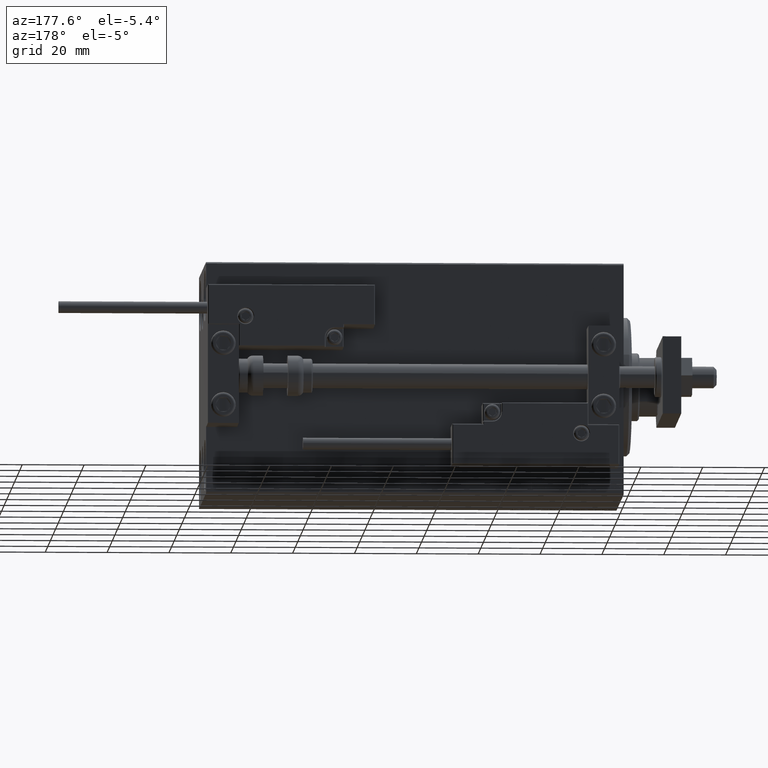
[diagram: clean part render]
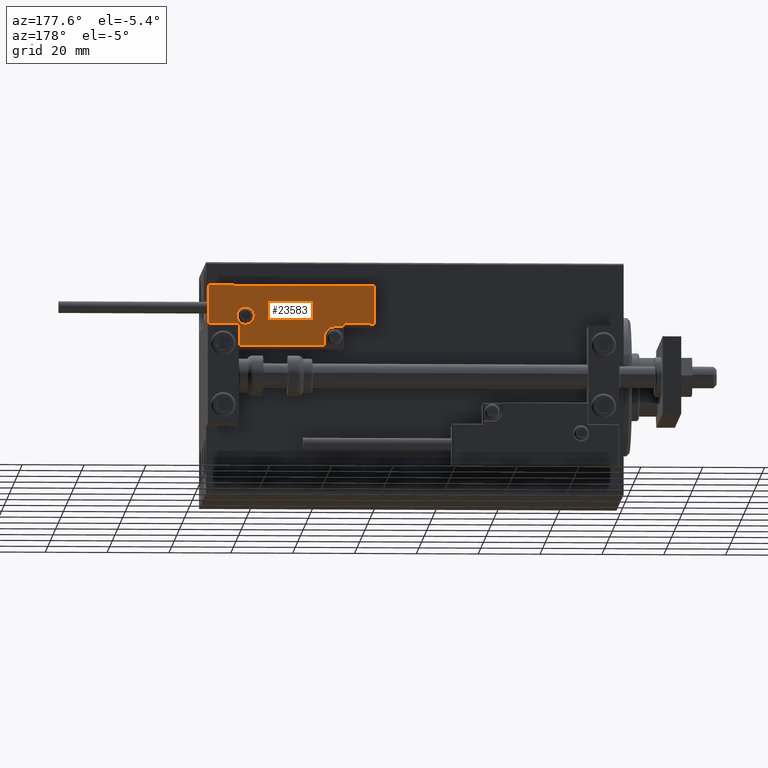
[diagram: same view with one face highlighted and labeled with its STEP entity id]
A machine part, auxiliary view. The second image highlights one B-rep face of the part: STEP entity #23583.
In plain terms, the highlighted planar face has unit normal (0, 1, -0).
Its self-contained STEP definition (entity closure, byte-faithful):
#622 = CARTESIAN_POINT ( 'NONE',  ( -16.99999999999999289, 7.300000000000003375, 14.00000000000000000 ) ) ;
#782 = VERTEX_POINT ( 'NONE', #30269 ) ;
#1481 = DIRECTION ( 'NONE',  ( -0.000000000000000000, 1.000000000000000000, -0.000000000000000000 ) ) ;
#2893 = PLANE ( 'NONE',  #28526 ) ;
#3618 = LINE ( 'NONE', #15483, #45931 ) ;
#4326 = ORIENTED_EDGE ( 'NONE', *, *, #16944, .T. ) ;
#4524 = LINE ( 'NONE', #35580, #6453 ) ;
#4982 = VERTEX_POINT ( 'NONE', #14223 ) ;
#5015 = LINE ( 'NONE', #29000, #49116 ) ;
#5566 = DIRECTION ( 'NONE',  ( 0.000000000000000000, -0.000000000000000000, -1.000000000000000000 ) ) ;
#5901 = DIRECTION ( 'NONE',  ( 0.000000000000000000, 1.000000000000000000, -0.000000000000000000 ) ) ;
#6419 = EDGE_CURVE ( 'NONE', #25670, #17656, #34373, .T. ) ;
#6453 = VECTOR ( 'NONE', #1481, 1000.000000000000000 ) ;
#6784 = CARTESIAN_POINT ( 'NONE',  ( 16.69999999999999929, 7.000000000000009770, 14.00000000000000000 ) ) ;
#6886 = ORIENTED_EDGE ( 'NONE', *, *, #14496, .T. ) ;
#9031 = CARTESIAN_POINT ( 'NONE',  ( 16.69999999999999929, 7.300000000000009592, 14.00000000000000000 ) ) ;
#11157 = ORIENTED_EDGE ( 'NONE', *, *, #29554, .T. ) ;
#11593 = CARTESIAN_POINT ( 'NONE',  ( -16.69999999999999218, 7.300000000000003375, 14.00000000000000000 ) ) ;
#11676 = DIRECTION ( 'NONE',  ( -1.000000000000000000, 6.424901762877063495E-17, -0.000000000000000000 ) ) ;
#11774 = VERTEX_POINT ( 'NONE', #26428 ) ;
#11996 = CIRCLE ( 'NONE', #44255, 2.800000000000000266 ) ;
#12188 = CARTESIAN_POINT ( 'NONE',  ( -14.79999999999994920, 9.800000000000004263, 14.00000000000000000 ) ) ;
#12478 = DIRECTION ( 'NONE',  ( 1.000000000000000000, -1.734723475976815230E-16, 0.000000000000000000 ) ) ;
#13154 = CARTESIAN_POINT ( 'NONE',  ( 10.69999999999999929, 0.3000000000000032085, 14.00000000000000000 ) ) ;
#13680 = DIRECTION ( 'NONE',  ( -8.006416042969869188E-16, -1.000000000000000000, 0.000000000000000000 ) ) ;
#14058 = VERTEX_POINT ( 'NONE', #13154 ) ;
#14223 = CARTESIAN_POINT ( 'NONE',  ( 26.70000000000006324, 7.300000000000007816, 14.00000000000000000 ) ) ;
#14246 = CARTESIAN_POINT ( 'NONE',  ( 0.000000000000000000, 0.000000000000000000, 14.00000000000000000 ) ) ;
#14496 = EDGE_CURVE ( 'NONE', #11774, #18731, #16531, .T. ) ;
#15338 = CARTESIAN_POINT ( 'NONE',  ( 11.00000000000000000, 0.3000000000000032085, 14.00000000000000000 ) ) ;
#15483 = CARTESIAN_POINT ( 'NONE',  ( -26.99999999999993605, 19.70000000000002061, 14.00000000000000000 ) ) ;
#15731 = EDGE_CURVE ( 'NONE', #17656, #25670, #11996, .T. ) ;
#15850 = ORIENTED_EDGE ( 'NONE', *, *, #31919, .T. ) ;
#16357 = EDGE_CURVE ( 'NONE', #48628, #30132, #18995, .T. ) ;
#16531 = LINE ( 'NONE', #622, #29883 ) ;
#16944 = EDGE_CURVE ( 'NONE', #18731, #782, #5015, .T. ) ;
#17026 = VECTOR ( 'NONE', #19487, 1000.000000000000000 ) ;
#17531 = LINE ( 'NONE', #36474, #48684 ) ;
#17546 = FACE_OUTER_BOUND ( 'NONE', #21228, .T. ) ;
#17656 = VERTEX_POINT ( 'NONE', #24229 ) ;
#18055 = ORIENTED_EDGE ( 'NONE', *, *, #42105, .T. ) ;
#18301 = DIRECTION ( 'NONE',  ( -0.000000000000000000, 0.000000000000000000, 1.000000000000000000 ) ) ;
#18731 = VERTEX_POINT ( 'NONE', #11593 ) ;
#18870 = EDGE_CURVE ( 'NONE', #14058, #37711, #4524, .T. ) ;
#18995 = LINE ( 'NONE', #25833, #47490 ) ;
#19487 = DIRECTION ( 'NONE',  ( 1.000000000000000000, -1.734723475976796001E-16, 0.000000000000000000 ) ) ;
#21114 = ORIENTED_EDGE ( 'NONE', *, *, #6419, .T. ) ;
#21228 = EDGE_LOOP ( 'NONE', ( #4326, #49288, #37989, #38463, #39401, #18055, #15850, #28333, #11157, #39473, #6886 ) ) ;
#21247 = CARTESIAN_POINT ( 'NONE',  ( 13.99999999999999822, 3.000000000000002665, 14.00000000000000000 ) ) ;
#21846 = DIRECTION ( 'NONE',  ( 1.000000000000000000, 0.000000000000000000, 0.000000000000000000 ) ) ;
#22453 = VERTEX_POINT ( 'NONE', #38780 ) ;
#22679 = LINE ( 'NONE', #15338, #42302 ) ;
#23246 = VERTEX_POINT ( 'NONE', #33514 ) ;
#23428 = CARTESIAN_POINT ( 'NONE',  ( 10.69999999999999929, 3.000000000000003109, 14.00000000000000000 ) ) ;
#23583 = ADVANCED_FACE ( 'NONE', ( #37493, #17546 ), #2893, .T. ) ;
#24229 = CARTESIAN_POINT ( 'NONE',  ( -17.59999999999994813, 9.800000000000004263, 14.00000000000000000 ) ) ;
#24327 = CARTESIAN_POINT ( 'NONE',  ( -26.69999999999994600, 7.000000000000005329, 14.00000000000000000 ) ) ;
#25670 = VERTEX_POINT ( 'NONE', #47839 ) ;
#25833 = CARTESIAN_POINT ( 'NONE',  ( 17.00000000000000000, 6.300000000000003375, 14.00000000000000000 ) ) ;
#26185 = AXIS2_PLACEMENT_3D ( 'NONE', #21247, #5566, #40174 ) ;
#26428 = CARTESIAN_POINT ( 'NONE',  ( -26.69999999999994600, 7.300000000000005151, 14.00000000000000000 ) ) ;
#26534 = EDGE_CURVE ( 'NONE', #22453, #11774, #32393, .T. ) ;
#27623 = DIRECTION ( 'NONE',  ( 1.000000000000000000, 0.000000000000000000, 0.000000000000000000 ) ) ;
#28333 = ORIENTED_EDGE ( 'NONE', *, *, #47348, .T. ) ;
#28526 = AXIS2_PLACEMENT_3D ( 'NONE', #14246, #18301, #21846 ) ;
#29000 = CARTESIAN_POINT ( 'NONE',  ( -16.69999999999999218, 3.252606517456513302E-15, 14.00000000000000000 ) ) ;
#29554 = EDGE_CURVE ( 'NONE', #23246, #22453, #3618, .T. ) ;
#29883 = VECTOR ( 'NONE', #12478, 1000.000000000000000 ) ;
#30132 = VERTEX_POINT ( 'NONE', #30539 ) ;
#30269 = CARTESIAN_POINT ( 'NONE',  ( -16.69999999999999218, 0.3000000000000032085, 14.00000000000000000 ) ) ;
#30539 = CARTESIAN_POINT ( 'NONE',  ( 16.69999999999999929, 6.300000000000003375, 14.00000000000000000 ) ) ;
#30980 = VERTEX_POINT ( 'NONE', #9031 ) ;
#31919 = EDGE_CURVE ( 'NONE', #30980, #4982, #34386, .T. ) ;
#32393 = LINE ( 'NONE', #24327, #32950 ) ;
#32950 = VECTOR ( 'NONE', #13680, 1000.000000000000000 ) ;
#33514 = CARTESIAN_POINT ( 'NONE',  ( 26.70000000000006324, 19.70000000000001705, 14.00000000000000000 ) ) ;
#33804 = DIRECTION ( 'NONE',  ( 9.912705577010318647E-16, 1.000000000000000000, 0.000000000000000000 ) ) ;
#34373 = CIRCLE ( 'NONE', #38410, 2.800000000000000266 ) ;
#34386 = LINE ( 'NONE', #45240, #17026 ) ;
#34389 = DIRECTION ( 'NONE',  ( 1.000000000000000000, 5.782411586589357639E-16, -0.000000000000000000 ) ) ;
#35500 = DIRECTION ( 'NONE',  ( 1.000000000000000000, 0.000000000000000000, 0.000000000000000000 ) ) ;
#35580 = CARTESIAN_POINT ( 'NONE',  ( 10.69999999999999929, 3.000000000000003109, 14.00000000000000000 ) ) ;
#35673 = DIRECTION ( 'NONE',  ( 0.000000000000000000, -0.000000000000000000, -1.000000000000000000 ) ) ;
#35790 = VECTOR ( 'NONE', #33804, 1000.000000000000000 ) ;
#36474 = CARTESIAN_POINT ( 'NONE',  ( 26.70000000000006324, 20.00000000000001776, 14.00000000000000000 ) ) ;
#37493 = FACE_BOUND ( 'NONE', #46835, .T. ) ;
#37711 = VERTEX_POINT ( 'NONE', #23428 ) ;
#37989 = ORIENTED_EDGE ( 'NONE', *, *, #18870, .T. ) ;
#38410 = AXIS2_PLACEMENT_3D ( 'NONE', #12188, #35673, #27623 ) ;
#38463 = ORIENTED_EDGE ( 'NONE', *, *, #43922, .T. ) ;
#38780 = CARTESIAN_POINT ( 'NONE',  ( -26.69999999999993534, 19.70000000000002061, 14.00000000000000000 ) ) ;
#39071 = CIRCLE ( 'NONE', #26185, 3.299999999999997158 ) ;
#39114 = ORIENTED_EDGE ( 'NONE', *, *, #15731, .T. ) ;
#39401 = ORIENTED_EDGE ( 'NONE', *, *, #16357, .T. ) ;
#39473 = ORIENTED_EDGE ( 'NONE', *, *, #26534, .T. ) ;
#40174 = DIRECTION ( 'NONE',  ( 1.000000000000000000, 0.000000000000000000, 0.000000000000000000 ) ) ;
#41375 = LINE ( 'NONE', #6784, #35790 ) ;
#42105 = EDGE_CURVE ( 'NONE', #30132, #30980, #41375, .T. ) ;
#42302 = VECTOR ( 'NONE', #46601, 1000.000000000000000 ) ;
#43922 = EDGE_CURVE ( 'NONE', #37711, #48628, #39071, .T. ) ;
#44255 = AXIS2_PLACEMENT_3D ( 'NONE', #46581, #47582, #35500 ) ;
#44403 = EDGE_CURVE ( 'NONE', #782, #14058, #22679, .T. ) ;
#45240 = CARTESIAN_POINT ( 'NONE',  ( 27.00000000000006395, 7.300000000000007816, 14.00000000000000000 ) ) ;
#45931 = VECTOR ( 'NONE', #11676, 1000.000000000000000 ) ;
#46581 = CARTESIAN_POINT ( 'NONE',  ( -14.79999999999994920, 9.800000000000004263, 14.00000000000000000 ) ) ;
#46601 = DIRECTION ( 'NONE',  ( 1.000000000000000000, -0.000000000000000000, 0.000000000000000000 ) ) ;
#46835 = EDGE_LOOP ( 'NONE', ( #21114, #39114 ) ) ;
#47348 = EDGE_CURVE ( 'NONE', #4982, #23246, #17531, .T. ) ;
#47401 = DIRECTION ( 'NONE',  ( 0.000000000000000000, -1.000000000000000000, 0.000000000000000000 ) ) ;
#47490 = VECTOR ( 'NONE', #34389, 1000.000000000000000 ) ;
#47582 = DIRECTION ( 'NONE',  ( 0.000000000000000000, -0.000000000000000000, -1.000000000000000000 ) ) ;
#47839 = CARTESIAN_POINT ( 'NONE',  ( -11.99999999999994849, 9.800000000000004263, 14.00000000000000000 ) ) ;
#48002 = CARTESIAN_POINT ( 'NONE',  ( 13.99999999999999822, 6.300000000000001599, 14.00000000000000000 ) ) ;
#48628 = VERTEX_POINT ( 'NONE', #48002 ) ;
#48684 = VECTOR ( 'NONE', #5901, 1000.000000000000000 ) ;
#49116 = VECTOR ( 'NONE', #47401, 1000.000000000000000 ) ;
#49288 = ORIENTED_EDGE ( 'NONE', *, *, #44403, .T. ) ;